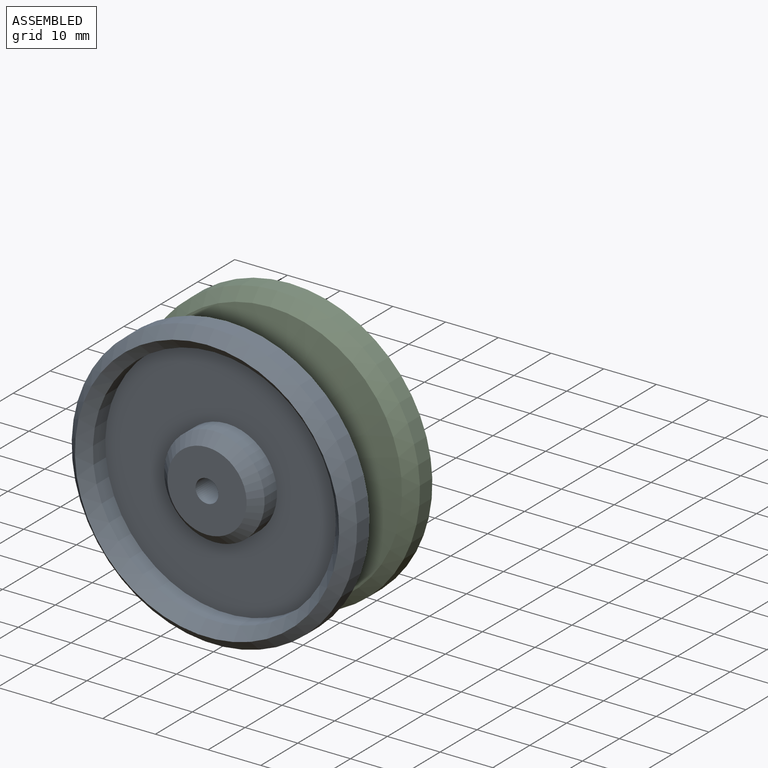
[diagram: assembled view]
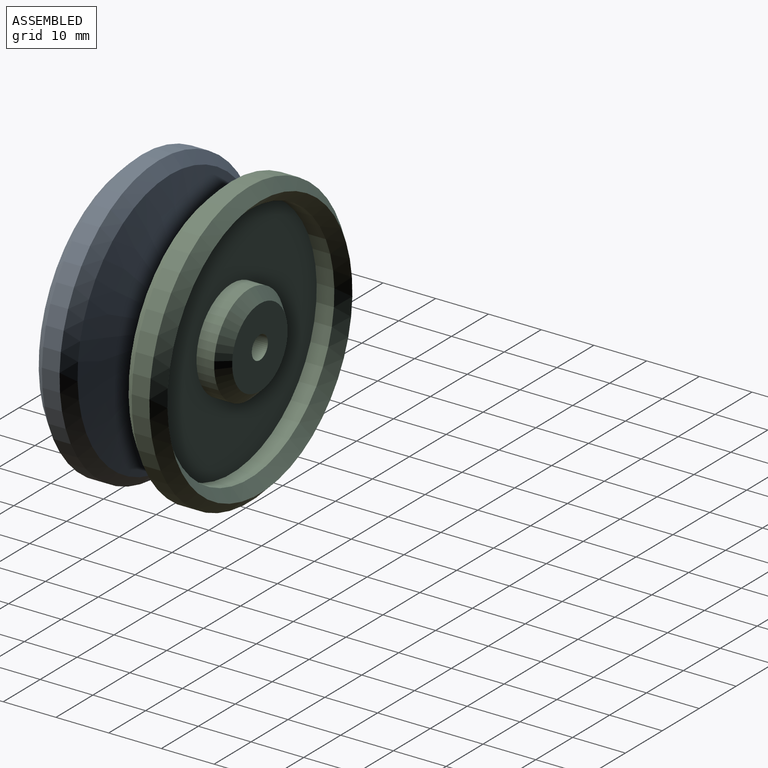
[diagram: assembled view, second angle]
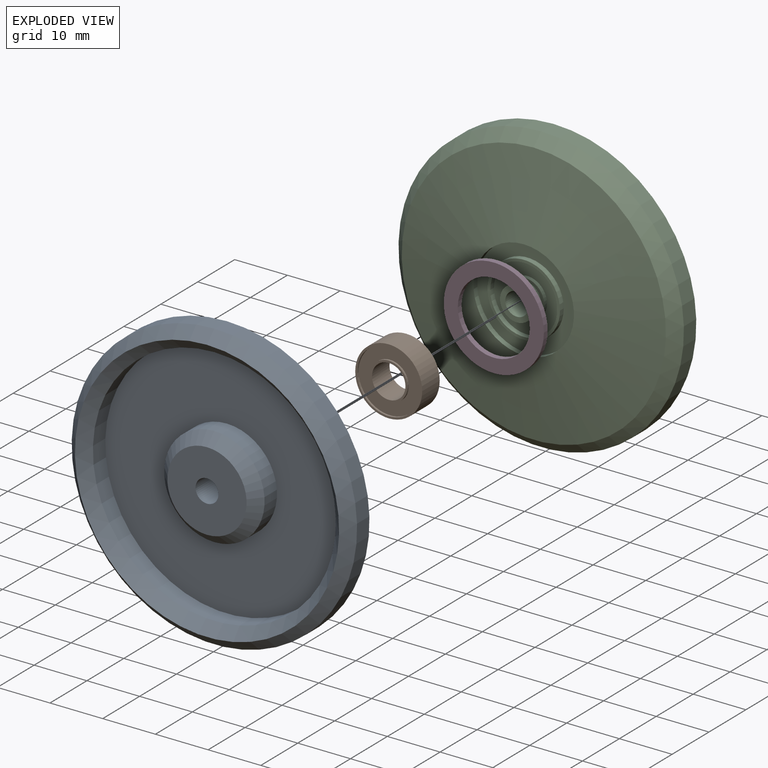
[diagram: exploded view]
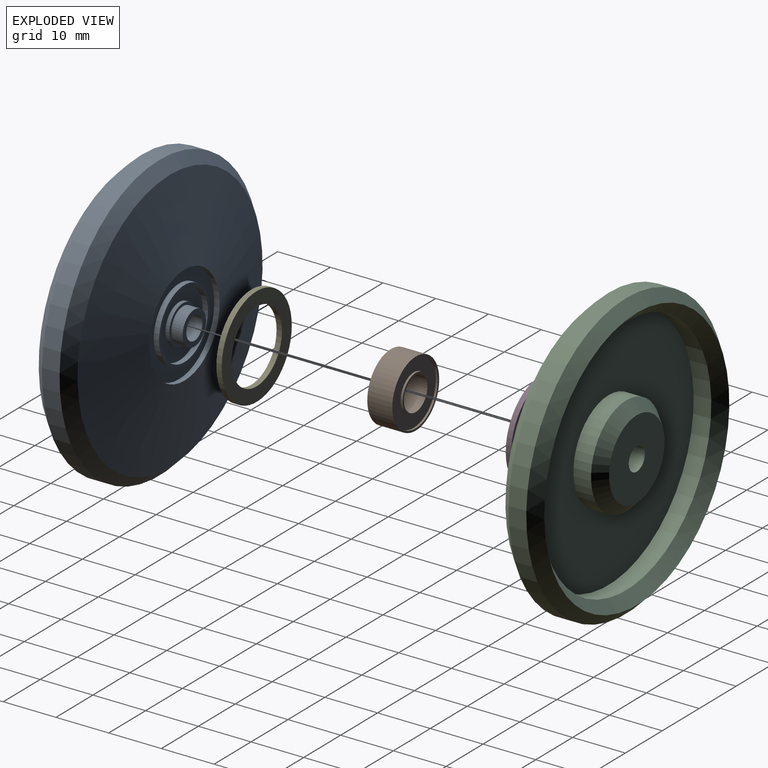
[diagram: exploded view, second angle]
ASSEMBLY  parts=5 mates=4
PART A: 21 faces, bbox 54.1x12x54.1 mm
  f0: plane 46.11x46.11mm, normal (0,1,0), area 1384.6mm2, adj f1,f9
  f1: cylinder r=23.05mm len=46.11mm, axis (0,1,0), area 485.3mm2, adj f0,f2
  f2: cone r=25.06mm half-angle=45deg, axis (0,1,0), area 429.5mm2, adj f1,f3
  f3: cone r=27.07mm half-angle=45deg, axis (0,-1,0), area 465.4mm2, adj f2,f4
  f4: cylinder r=27.07mm len=54.14mm, axis (0,1,0), area 569.8mm2, adj f3,f5
  f5: cone r=25.06mm half-angle=45deg, axis (0,1,0), area 465.4mm2, adj f4,f6
  f6: cone r=9.53mm half-angle=80deg, axis (0,1,0), area 1714.3mm2, adj f5,f11
  f7: plane 15.03x15.03mm, normal (0,1,0), area 162.6mm2, adj f8,f20
  f8: cone r=9.53mm half-angle=45deg, axis (0,-1,0), area 152.1mm2, adj f7,f9
  f9: cylinder r=9.53mm len=19.05mm, axis (0,1,0), area 200.5mm2, adj f0,f8
  f10: cylinder r=6.88mm len=13.77mm, axis (0,-1,0), area 43.9mm2, adj f12,f13
  f11: cylinder r=9.53mm len=19.05mm, axis (0,-1,0), area 60.8mm2, adj f6,f12
  f12: plane 19.05x19.05mm, normal (0,-1,0), area 136.2mm2, adj f10,f11
  f13: plane 13.77x13.77mm, normal (0,-1,0), area 22.2mm2, adj f10,f14
  f14: cylinder r=6.35mm len=12.7mm, axis (0,-1,0), area 40.5mm2, adj f13,f15
  f15: plane 12.7x12.7mm, normal (0,-1,0), area 83.5mm2, adj f14,f16
  f16: cylinder r=3.71mm len=7.42mm, axis (0,1,0), area 17.2mm2, adj f15,f17
  f17: plane 7.42x7.42mm, normal (0,-1,0), area 11.5mm2, adj f16,f18
  f18: cylinder r=3.17mm len=6.35mm, axis (0,1,0), area 43.1mm2, adj f17,f19
  f19: plane 6.35x6.35mm, normal (0,-1,0), area 16.8mm2, adj f18,f20
  f20: cylinder r=2.17mm len=11.99mm, axis (0,-1,0), area 163.8mm2, adj f7,f19
PART B: 12 faces, bbox 4.8x12.7x12.7 mm
  f0: plane 7.11x7.11mm, normal (-1,0,0), area 8.1mm2, adj f5,f9
  f1: plane 7.11x7.11mm, normal (1,0,0), area 8.1mm2, adj f5,f6
  f2: cylinder r=6.35mm len=12.7mm, axis (-1,0,0), area 189.5mm2, adj f3,f4
  f3: plane 12.7x12.7mm, normal (1,0,0), area 14.7mm2, adj f2,f7
  f4: plane 12.7x12.7mm, normal (-1,0,0), area 14.7mm2, adj f2,f10
  f5: cylinder r=3.17mm len=6.35mm, axis (1,0,0), area 94.8mm2, adj f0,f1
  f6: cylinder r=3.56mm len=7.11mm, axis (1,0,0), area 8.5mm2, adj f1,f8
  f7: cylinder r=5.97mm len=11.94mm, axis (1,0,0), area 14.3mm2, adj f3,f8
  f8: plane 11.94x11.94mm, normal (1,0,0), area 72.2mm2, adj f6,f7
  f9: cylinder r=3.56mm len=7.11mm, axis (-1,0,0), area 8.5mm2, adj f0,f11
  f10: cylinder r=5.97mm len=11.94mm, axis (-1,0,0), area 14.3mm2, adj f4,f11
  f11: plane 11.94x11.94mm, normal (-1,0,0), area 72.2mm2, adj f9,f10
PART C: same geometry as A
PART D: 4 faces, bbox 1x19x19 mm
  f0: cylinder r=6.83mm len=13.67mm, axis (-1,0,0), area 43.6mm2, adj f2,f3
  f1: cylinder r=9.5mm len=19mm, axis (-1,0,0), area 60.6mm2, adj f2,f3
  f2: plane 19x19mm, normal (1,0,0), area 136.8mm2, adj f0,f1
  f3: plane 19x19mm, normal (-1,0,0), area 136.8mm2, adj f0,f1
PART E: same geometry as D
PLACE A rot(axis=(0,0,1),180deg) t=(0,-41.63,52.16)mm
PLACE B rot(axis=(-0.58,-0.58,0.58),120deg) t=(0,-41.91,52.16)mm
PLACE C t=(0,-37.44,52.16)mm
PLACE D rot(axis=(-0.58,-0.58,0.58),120deg) t=(0,-37.44,52.16)mm
PLACE E rot(axis=(0.58,0.58,0.58),120deg) t=(0,-42.65,52.16)mm
MATE fastened D.f0 <-> C.f1  axis (0,1,0) through (0,-36.42,52.16)mm
MATE fastened B.f5 <-> C.f1  axis (0,1,0) through (0,-37.16,52.16)mm
MATE fastened E.f1 <-> A.f1  axis (0,1,0) through (0,-41.63,52.16)mm
MATE fastened B.f5 <-> A.f1  axis (0,-1,0) through (0,-41.91,52.16)mm
